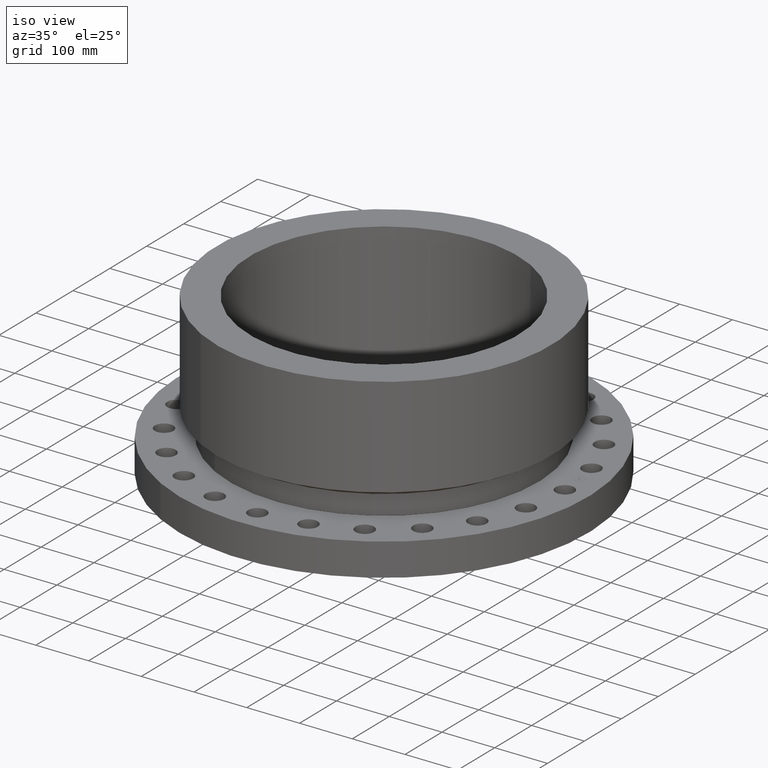
[diagram: clean part render]
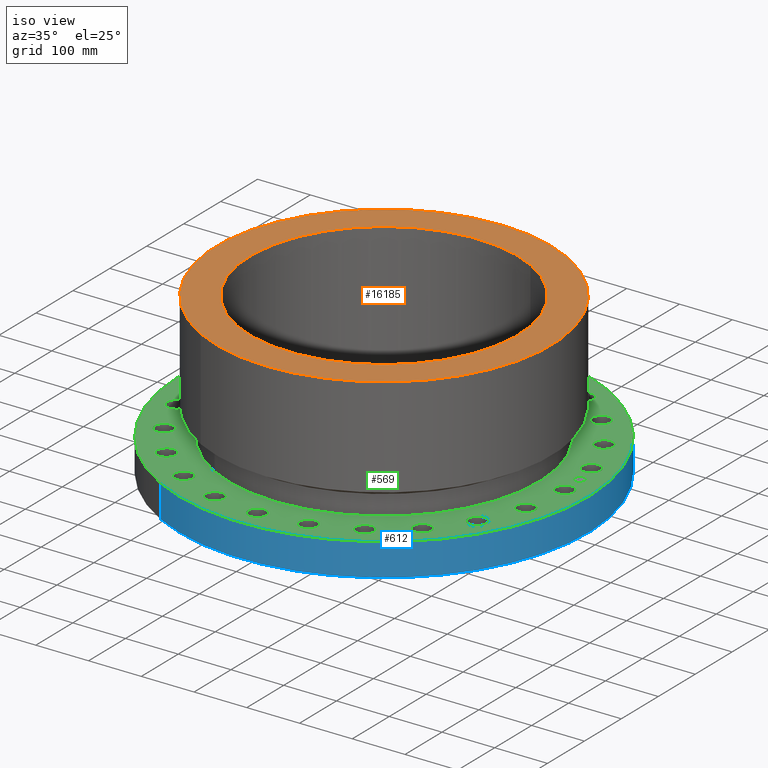
[diagram: same view with three faces highlighted in distinct colors, each labeled with its STEP entity id]
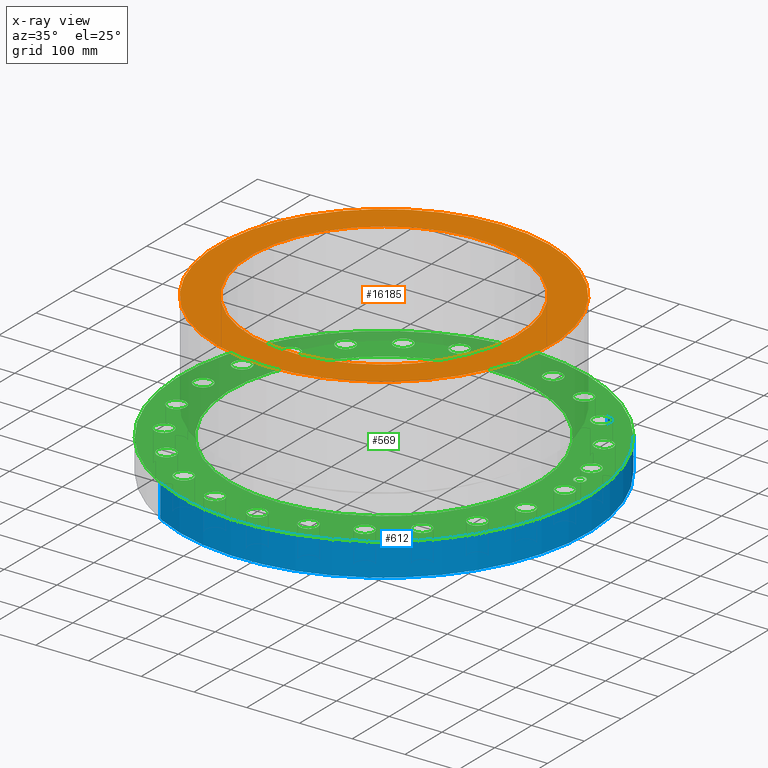
[diagram: x-ray of the same camera — body ghosted, the three highlighted faces saturated]
A machine part, iso view with three faces highlighted in distinct colors.
The next image is the same camera in x-ray (body ghosted, the three faces saturated) — at least one of them is partly hidden behind the body in this view.
Their STEP definitions:

[orange] entity #16185 — the highlighted planar face has unit normal (0, 0, -1).
#5381=AXIS2_PLACEMENT_3D('Circle Axis2P3D',#5379,#5380,$) ;
#5400=AXIS2_PLACEMENT_3D('Circle Axis2P3D',#5398,#5399,$) ;
#16161=AXIS2_PLACEMENT_3D('Plane Axis2P3D',#16158,#16159,#16160) ;
#16169=AXIS2_PLACEMENT_3D('Circle Axis2P3D',#16167,#16168,$) ;
#16178=AXIS2_PLACEMENT_3D('Circle Axis2P3D',#16176,#16177,$) ;
#5376=CARTESIAN_POINT('Vertex',(5.99281923258,10.9697820237,11.9375)) ;
#5379=CARTESIAN_POINT('Axis2P3D Location',(0.,0.,11.9375)) ;
#5383=CARTESIAN_POINT('Vertex',(-5.99281923258,-10.9697820237,11.9375)) ;
#5398=CARTESIAN_POINT('Axis2P3D Location',(0.,0.,11.9375)) ;
#16158=CARTESIAN_POINT('Axis2P3D Location',(0.,12.5,11.9375)) ;
#16167=CARTESIAN_POINT('Axis2P3D Location',(0.,0.,11.9375)) ;
#16171=CARTESIAN_POINT('Vertex',(-4.79425538606,-8.77582561894,11.9375)) ;
#16173=CARTESIAN_POINT('Vertex',(4.79425538606,8.77582561894,11.9375)) ;
#16176=CARTESIAN_POINT('Axis2P3D Location',(0.,0.,11.9375)) ;
#5380=DIRECTION('Axis2P3D Direction',(0.,0.,-0.0393700787402)) ;
#5399=DIRECTION('Axis2P3D Direction',(0.,0.,-0.0393700787402)) ;
#16159=DIRECTION('Axis2P3D Direction',(0.,0.,-0.0393700787402)) ;
#16160=DIRECTION('Axis2P3D XDirection',(0.0393700787402,0.,0.)) ;
#16168=DIRECTION('Axis2P3D Direction',(0.,0.,-0.0393700787402)) ;
#16177=DIRECTION('Axis2P3D Direction',(0.,0.,-0.0393700787402)) ;
#16164=ORIENTED_EDGE('',*,*,#5385,.F.) ;
#16165=ORIENTED_EDGE('',*,*,#5402,.F.) ;
#16182=ORIENTED_EDGE('',*,*,#16175,.T.) ;
#16183=ORIENTED_EDGE('',*,*,#16180,.T.) ;
#16184=FACE_BOUND('',#16181,.T.) ;
#16185=ADVANCED_FACE('PartBody',(#16166,#16184),#16162,.F.) ;
#5382=CIRCLE('generated circle',#5381,12.5000000001) ;
#5401=CIRCLE('generated circle',#5400,12.5000000001) ;
#16170=CIRCLE('generated circle',#16169,10.) ;
#16179=CIRCLE('generated circle',#16178,10.) ;
#5385=EDGE_CURVE('',#5377,#5384,#5382,.T.) ;
#5402=EDGE_CURVE('',#5384,#5377,#5401,.T.) ;
#16175=EDGE_CURVE('',#16172,#16174,#16170,.T.) ;
#16180=EDGE_CURVE('',#16174,#16172,#16179,.T.) ;
#16163=EDGE_LOOP('',(#16164,#16165)) ;
#16181=EDGE_LOOP('',(#16182,#16183)) ;
#16166=FACE_OUTER_BOUND('',#16163,.T.) ;
#16162=PLANE('',#16161) ;
#5377=VERTEX_POINT('',#5376) ;
#5384=VERTEX_POINT('',#5383) ;
#16172=VERTEX_POINT('',#16171) ;
#16174=VERTEX_POINT('',#16173) ;

[blue] entity #612 — the highlighted cylindrical surface (partial cylindrical patch) has radius 387.35 mm, axis along (0, 0, -1).
#99=AXIS2_PLACEMENT_3D('Circle Axis2P3D',#97,#98,$) ;
#573=AXIS2_PLACEMENT_3D('Cylinder Axis2P3D',#570,#571,#572) ;
#603=AXIS2_PLACEMENT_3D('Circle Axis2P3D',#601,#602,$) ;
#97=CARTESIAN_POINT('Axis2P3D Location',(0.,0.,2.43750000001)) ;
#101=CARTESIAN_POINT('Vertex',(7.31123946374,13.3831340689,2.43750000001)) ;
#103=CARTESIAN_POINT('Vertex',(-7.31123946374,-13.3831340689,2.43750000001)) ;
#570=CARTESIAN_POINT('Axis2P3D Location',(0.,0.,5.93750000002)) ;
#579=CARTESIAN_POINT('Vertex',(-7.31123946374,-13.3831340689,2.23792987641E-015)) ;
#581=CARTESIAN_POINT('Vertex',(7.31123946374,13.3831340689,2.23792987641E-015)) ;
#584=CARTESIAN_POINT('Line Origine',(-7.31123946374,-13.3831340689,1.21875)) ;
#589=CARTESIAN_POINT('Line Origine',(7.31123946374,13.3831340689,1.21875)) ;
#601=CARTESIAN_POINT('Axis2P3D Location',(0.,0.,2.23792987641E-015)) ;
#98=DIRECTION('Axis2P3D Direction',(0.,0.,-0.0393700787402)) ;
#571=DIRECTION('Axis2P3D Direction',(0.,0.,-0.0393700787402)) ;
#572=DIRECTION('Axis2P3D XDirection',(0.0188750212049,0.0345504945626,0.)) ;
#585=DIRECTION('Vector Direction',(0.,0.,-0.0393700787402)) ;
#590=DIRECTION('Vector Direction',(0.,0.,-0.0393700787402)) ;
#602=DIRECTION('Axis2P3D Direction',(0.,0.,-0.0393700787402)) ;
#586=VECTOR('Line Direction',#585,0.0393700787402) ;
#591=VECTOR('Line Direction',#590,0.0393700787402) ;
#607=ORIENTED_EDGE('',*,*,#605,.F.) ;
#608=ORIENTED_EDGE('',*,*,#593,.T.) ;
#609=ORIENTED_EDGE('',*,*,#105,.T.) ;
#610=ORIENTED_EDGE('',*,*,#588,.F.) ;
#612=ADVANCED_FACE('PartBody',(#611),#574,.T.) ;
#100=CIRCLE('generated circle',#99,15.2500000001) ;
#604=CIRCLE('generated circle',#603,15.2500000001) ;
#574=CYLINDRICAL_SURFACE('generated cylinder',#573,15.2500000001) ;
#105=EDGE_CURVE('',#102,#104,#100,.T.) ;
#588=EDGE_CURVE('',#580,#104,#587,.F.) ;
#593=EDGE_CURVE('',#582,#102,#592,.F.) ;
#605=EDGE_CURVE('',#582,#580,#604,.T.) ;
#606=EDGE_LOOP('',(#607,#608,#609,#610)) ;
#611=FACE_OUTER_BOUND('',#606,.T.) ;
#587=LINE('Line',#584,#586) ;
#592=LINE('Line',#589,#591) ;
#102=VERTEX_POINT('',#101) ;
#104=VERTEX_POINT('',#103) ;
#580=VERTEX_POINT('',#579) ;
#582=VERTEX_POINT('',#581) ;

[green] entity #569 — the highlighted planar face has unit normal (0, 0, -1).
#51=AXIS2_PLACEMENT_3D('Circle Axis2P3D',#49,#50,$) ;
#77=AXIS2_PLACEMENT_3D('Circle Axis2P3D',#75,#76,$) ;
#95=AXIS2_PLACEMENT_3D('Plane Axis2P3D',#92,#93,#94) ;
#99=AXIS2_PLACEMENT_3D('Circle Axis2P3D',#97,#98,$) ;
#108=AXIS2_PLACEMENT_3D('Circle Axis2P3D',#106,#107,$) ;
#121=AXIS2_PLACEMENT_3D('Circle Axis2P3D',#119,#120,$) ;
#130=AXIS2_PLACEMENT_3D('Circle Axis2P3D',#128,#129,$) ;
#139=AXIS2_PLACEMENT_3D('Circle Axis2P3D',#137,#138,$) ;
#148=AXIS2_PLACEMENT_3D('Circle Axis2P3D',#146,#147,$) ;
#157=AXIS2_PLACEMENT_3D('Circle Axis2P3D',#155,#156,$) ;
#166=AXIS2_PLACEMENT_3D('Circle Axis2P3D',#164,#165,$) ;
#175=AXIS2_PLACEMENT_3D('Circle Axis2P3D',#173,#174,$) ;
#184=AXIS2_PLACEMENT_3D('Circle Axis2P3D',#182,#183,$) ;
#193=AXIS2_PLACEMENT_3D('Circle Axis2P3D',#191,#192,$) ;
#202=AXIS2_PLACEMENT_3D('Circle Axis2P3D',#200,#201,$) ;
#211=AXIS2_PLACEMENT_3D('Circle Axis2P3D',#209,#210,$) ;
#220=AXIS2_PLACEMENT_3D('Circle Axis2P3D',#218,#219,$) ;
#229=AXIS2_PLACEMENT_3D('Circle Axis2P3D',#227,#228,$) ;
#238=AXIS2_PLACEMENT_3D('Circle Axis2P3D',#236,#237,$) ;
#247=AXIS2_PLACEMENT_3D('Circle Axis2P3D',#245,#246,$) ;
#256=AXIS2_PLACEMENT_3D('Circle Axis2P3D',#254,#255,$) ;
#265=AXIS2_PLACEMENT_3D('Circle Axis2P3D',#263,#264,$) ;
#274=AXIS2_PLACEMENT_3D('Circle Axis2P3D',#272,#273,$) ;
#283=AXIS2_PLACEMENT_3D('Circle Axis2P3D',#281,#282,$) ;
#292=AXIS2_PLACEMENT_3D('Circle Axis2P3D',#290,#291,$) ;
#301=AXIS2_PLACEMENT_3D('Circle Axis2P3D',#299,#300,$) ;
#310=AXIS2_PLACEMENT_3D('Circle Axis2P3D',#308,#309,$) ;
#319=AXIS2_PLACEMENT_3D('Circle Axis2P3D',#317,#318,$) ;
#328=AXIS2_PLACEMENT_3D('Circle Axis2P3D',#326,#327,$) ;
#337=AXIS2_PLACEMENT_3D('Circle Axis2P3D',#335,#336,$) ;
#346=AXIS2_PLACEMENT_3D('Circle Axis2P3D',#344,#345,$) ;
#355=AXIS2_PLACEMENT_3D('Circle Axis2P3D',#353,#354,$) ;
#364=AXIS2_PLACEMENT_3D('Circle Axis2P3D',#362,#363,$) ;
#373=AXIS2_PLACEMENT_3D('Circle Axis2P3D',#371,#372,$) ;
#382=AXIS2_PLACEMENT_3D('Circle Axis2P3D',#380,#381,$) ;
#391=AXIS2_PLACEMENT_3D('Circle Axis2P3D',#389,#390,$) ;
#400=AXIS2_PLACEMENT_3D('Circle Axis2P3D',#398,#399,$) ;
#409=AXIS2_PLACEMENT_3D('Circle Axis2P3D',#407,#408,$) ;
#418=AXIS2_PLACEMENT_3D('Circle Axis2P3D',#416,#417,$) ;
#427=AXIS2_PLACEMENT_3D('Circle Axis2P3D',#425,#426,$) ;
#436=AXIS2_PLACEMENT_3D('Circle Axis2P3D',#434,#435,$) ;
#445=AXIS2_PLACEMENT_3D('Circle Axis2P3D',#443,#444,$) ;
#454=AXIS2_PLACEMENT_3D('Circle Axis2P3D',#452,#453,$) ;
#463=AXIS2_PLACEMENT_3D('Circle Axis2P3D',#461,#462,$) ;
#472=AXIS2_PLACEMENT_3D('Circle Axis2P3D',#470,#471,$) ;
#481=AXIS2_PLACEMENT_3D('Circle Axis2P3D',#479,#480,$) ;
#490=AXIS2_PLACEMENT_3D('Circle Axis2P3D',#488,#489,$) ;
#499=AXIS2_PLACEMENT_3D('Circle Axis2P3D',#497,#498,$) ;
#508=AXIS2_PLACEMENT_3D('Circle Axis2P3D',#506,#507,$) ;
#517=AXIS2_PLACEMENT_3D('Circle Axis2P3D',#515,#516,$) ;
#526=AXIS2_PLACEMENT_3D('Circle Axis2P3D',#524,#525,$) ;
#535=AXIS2_PLACEMENT_3D('Circle Axis2P3D',#533,#534,$) ;
#544=AXIS2_PLACEMENT_3D('Circle Axis2P3D',#542,#543,$) ;
#553=AXIS2_PLACEMENT_3D('Circle Axis2P3D',#551,#552,$) ;
#562=AXIS2_PLACEMENT_3D('Circle Axis2P3D',#560,#561,$) ;
#44=CARTESIAN_POINT('Vertex',(12.8944680323,-0.330803621638,2.43750000001)) ;
#49=CARTESIAN_POINT('Axis2P3D Location',(13.5000000001,0.,2.43750000001)) ;
#53=CARTESIAN_POINT('Vertex',(14.1055319678,0.330803621638,2.43750000001)) ;
#75=CARTESIAN_POINT('Axis2P3D Location',(13.5000000001,0.,2.43750000001)) ;
#92=CARTESIAN_POINT('Axis2P3D Location',(0.,15.2500000001,2.43750000001)) ;
#97=CARTESIAN_POINT('Axis2P3D Location',(0.,0.,2.43750000001)) ;
#101=CARTESIAN_POINT('Vertex',(7.31123946374,13.3831340689,2.43750000001)) ;
#103=CARTESIAN_POINT('Vertex',(-7.31123946374,-13.3831340689,2.43750000001)) ;
#106=CARTESIAN_POINT('Axis2P3D Location',(0.,0.,2.43750000001)) ;
#119=CARTESIAN_POINT('Axis2P3D Location',(0.,0.,2.43750000001)) ;
#123=CARTESIAN_POINT('Vertex',(-5.53496784321,-10.1316906771,2.43750000001)) ;
#125=CARTESIAN_POINT('Vertex',(5.53496784321,10.1316906771,2.43750000001)) ;
#128=CARTESIAN_POINT('Axis2P3D Location',(0.,0.,2.43750000001)) ;
#137=CARTESIAN_POINT('Axis2P3D Location',(13.039998655,-3.4940571089,2.43750000001)) ;
#141=CARTESIAN_POINT('Vertex',(12.3694814112,-3.65686566481,2.43750000001)) ;
#143=CARTESIAN_POINT('Vertex',(13.7105158987,-3.33124855299,2.43750000001)) ;
#146=CARTESIAN_POINT('Axis2P3D Location',(13.039998655,-3.4940571089,2.43750000001)) ;
#155=CARTESIAN_POINT('Axis2P3D Location',(11.6913429511,-6.75000000003,2.43750000001)) ;
#159=CARTESIAN_POINT('Vertex',(11.0015350735,-6.73371835618,2.43750000001)) ;
#161=CARTESIAN_POINT('Vertex',(12.3811508288,-6.76628164388,2.43750000001)) ;
#164=CARTESIAN_POINT('Axis2P3D Location',(11.6913429511,-6.75000000003,2.43750000001)) ;
#173=CARTESIAN_POINT('Axis2P3D Location',(9.54594154606,-9.54594154606,2.43750000001)) ;
#177=CARTESIAN_POINT('Vertex',(8.88385230136,-9.35167926957,2.43750000001)) ;
#179=CARTESIAN_POINT('Vertex',(10.2080307907,-9.74020382255,2.43750000001)) ;
#182=CARTESIAN_POINT('Axis2P3D Location',(9.54594154606,-9.54594154606,2.43750000001)) ;
#191=CARTESIAN_POINT('Axis2P3D Location',(6.75000000003,-11.6913429511,2.43750000001)) ;
#195=CARTESIAN_POINT('Vertex',(6.16074967617,-11.3323386951,2.43750000001)) ;
#197=CARTESIAN_POINT('Vertex',(7.33925032388,-12.0503472072,2.43750000001)) ;
#200=CARTESIAN_POINT('Axis2P3D Location',(6.75000000003,-11.6913429511,2.43750000001)) ;
#209=CARTESIAN_POINT('Axis2P3D Location',(3.4940571089,-13.039998655,2.43750000001)) ;
#213=CARTESIAN_POINT('Vertex',(3.01780214167,-12.5407179662,2.43750000001)) ;
#215=CARTESIAN_POINT('Vertex',(3.97031207613,-13.5392793437,2.43750000001)) ;
#218=CARTESIAN_POINT('Axis2P3D Location',(3.4940571089,-13.039998655,2.43750000001)) ;
#227=CARTESIAN_POINT('Axis2P3D Location',(-1.53857679003E-015,-13.5000000001,2.43750000001)) ;
#231=CARTESIAN_POINT('Vertex',(-0.330803621638,-12.8944680323,2.43750000001)) ;
#233=CARTESIAN_POINT('Vertex',(0.330803621638,-14.1055319678,2.43750000001)) ;
#236=CARTESIAN_POINT('Axis2P3D Location',(-1.39870617276E-015,-13.5000000001,2.43750000001)) ;
#245=CARTESIAN_POINT('Axis2P3D Location',(-3.4940571089,-13.039998655,2.43750000001)) ;
#249=CARTESIAN_POINT('Vertex',(-3.65686566481,-12.3694814112,2.43750000001)) ;
#251=CARTESIAN_POINT('Vertex',(-3.33124855299,-13.7105158987,2.43750000001)) ;
#254=CARTESIAN_POINT('Axis2P3D Location',(-3.4940571089,-13.039998655,2.43750000001)) ;
#263=CARTESIAN_POINT('Axis2P3D Location',(-6.75000000003,-11.6913429511,2.43750000001)) ;
#267=CARTESIAN_POINT('Vertex',(-6.73371835618,-11.0015350735,2.43750000001)) ;
#269=CARTESIAN_POINT('Vertex',(-6.76628164388,-12.3811508288,2.43750000001)) ;
#272=CARTESIAN_POINT('Axis2P3D Location',(-6.75000000003,-11.6913429511,2.43750000001)) ;
#281=CARTESIAN_POINT('Axis2P3D Location',(-9.54594154606,-9.54594154606,2.43750000001)) ;
#285=CARTESIAN_POINT('Vertex',(-9.35167926957,-8.88385230136,2.43750000001)) ;
#287=CARTESIAN_POINT('Vertex',(-9.74020382255,-10.2080307907,2.43750000001)) ;
#290=CARTESIAN_POINT('Axis2P3D Location',(-9.54594154606,-9.54594154606,2.43750000001)) ;
#299=CARTESIAN_POINT('Axis2P3D Location',(-11.6913429511,-6.75000000003,2.43750000001)) ;
#303=CARTESIAN_POINT('Vertex',(-11.3323386951,-6.16074967617,2.43750000001)) ;
#305=CARTESIAN_POINT('Vertex',(-12.0503472072,-7.33925032388,2.43750000001)) ;
#308=CARTESIAN_POINT('Axis2P3D Location',(-11.6913429511,-6.75000000003,2.43750000001)) ;
#317=CARTESIAN_POINT('Axis2P3D Location',(-13.039998655,-3.4940571089,2.43750000001)) ;
#321=CARTESIAN_POINT('Vertex',(-12.5407179662,-3.01780214167,2.43750000001)) ;
#323=CARTESIAN_POINT('Vertex',(-13.5392793437,-3.97031207613,2.43750000001)) ;
#326=CARTESIAN_POINT('Axis2P3D Location',(-13.039998655,-3.4940571089,2.43750000001)) ;
#335=CARTESIAN_POINT('Axis2P3D Location',(-13.5000000001,-2.23792987641E-015,2.43750000001)) ;
#339=CARTESIAN_POINT('Vertex',(-12.8944680323,0.330803621638,2.43750000001)) ;
#341=CARTESIAN_POINT('Vertex',(-14.1055319678,-0.330803621638,2.43750000001)) ;
#344=CARTESIAN_POINT('Axis2P3D Location',(-13.5000000001,0.,2.43750000001)) ;
#353=CARTESIAN_POINT('Axis2P3D Location',(-13.039998655,3.4940571089,2.43750000001)) ;
#357=CARTESIAN_POINT('Vertex',(-12.3694814112,3.65686566481,2.43750000001)) ;
#359=CARTESIAN_POINT('Vertex',(-13.7105158987,3.33124855299,2.43750000001)) ;
#362=CARTESIAN_POINT('Axis2P3D Location',(-13.039998655,3.4940571089,2.43750000001)) ;
#371=CARTESIAN_POINT('Axis2P3D Location',(-11.6913429511,6.75000000003,2.43750000001)) ;
#375=CARTESIAN_POINT('Vertex',(-11.0015350735,6.73371835618,2.43750000001)) ;
#377=CARTESIAN_POINT('Vertex',(-12.3811508288,6.76628164388,2.43750000001)) ;
#380=CARTESIAN_POINT('Axis2P3D Location',(-11.6913429511,6.75000000003,2.43750000001)) ;
#389=CARTESIAN_POINT('Axis2P3D Location',(-9.54594154606,9.54594154606,2.43750000001)) ;
#393=CARTESIAN_POINT('Vertex',(-8.88385230136,9.35167926957,2.43750000001)) ;
#395=CARTESIAN_POINT('Vertex',(-10.2080307907,9.74020382255,2.43750000001)) ;
#398=CARTESIAN_POINT('Axis2P3D Location',(-9.54594154606,9.54594154606,2.43750000001)) ;
#407=CARTESIAN_POINT('Axis2P3D Location',(-6.75000000003,11.6913429511,2.43750000001)) ;
#411=CARTESIAN_POINT('Vertex',(-6.16074967617,11.3323386951,2.43750000001)) ;
#413=CARTESIAN_POINT('Vertex',(-7.33925032388,12.0503472072,2.43750000001)) ;
#416=CARTESIAN_POINT('Axis2P3D Location',(-6.75000000003,11.6913429511,2.43750000001)) ;
#425=CARTESIAN_POINT('Axis2P3D Location',(-3.4940571089,13.039998655,2.43750000001)) ;
#429=CARTESIAN_POINT('Vertex',(-3.01780214167,12.5407179662,2.43750000001)) ;
#431=CARTESIAN_POINT('Vertex',(-3.97031207613,13.5392793437,2.43750000001)) ;
#434=CARTESIAN_POINT('Axis2P3D Location',(-3.4940571089,13.039998655,2.43750000001)) ;
#443=CARTESIAN_POINT('Axis2P3D Location',(-2.16799456777E-015,13.5000000001,2.43750000001)) ;
#447=CARTESIAN_POINT('Vertex',(0.330803621638,12.8944680323,2.43750000001)) ;
#449=CARTESIAN_POINT('Vertex',(-0.330803621638,14.1055319678,2.43750000001)) ;
#452=CARTESIAN_POINT('Axis2P3D Location',(-2.51767111096E-015,13.5000000001,2.43750000001)) ;
#461=CARTESIAN_POINT('Axis2P3D Location',(3.4940571089,13.039998655,2.43750000001)) ;
#465=CARTESIAN_POINT('Vertex',(3.65686566481,12.3694814112,2.43750000001)) ;
#467=CARTESIAN_POINT('Vertex',(3.33124855299,13.7105158987,2.43750000001)) ;
#470=CARTESIAN_POINT('Axis2P3D Location',(3.4940571089,13.039998655,2.43750000001)) ;
#479=CARTESIAN_POINT('Axis2P3D Location',(6.75000000003,11.6913429511,2.43750000001)) ;
#483=CARTESIAN_POINT('Vertex',(6.73371835618,11.0015350735,2.43750000001)) ;
#485=CARTESIAN_POINT('Vertex',(6.76628164388,12.3811508288,2.43750000001)) ;
#488=CARTESIAN_POINT('Axis2P3D Location',(6.75000000003,11.6913429511,2.43750000001)) ;
#497=CARTESIAN_POINT('Axis2P3D Location',(9.54594154606,9.54594154606,2.43750000001)) ;
#501=CARTESIAN_POINT('Vertex',(9.35167926957,8.88385230136,2.43750000001)) ;
#503=CARTESIAN_POINT('Vertex',(9.74020382255,10.2080307907,2.43750000001)) ;
#506=CARTESIAN_POINT('Axis2P3D Location',(9.54594154606,9.54594154606,2.43750000001)) ;
#515=CARTESIAN_POINT('Axis2P3D Location',(11.6913429511,6.75000000003,2.43750000001)) ;
#519=CARTESIAN_POINT('Vertex',(11.3323386951,6.16074967617,2.43750000001)) ;
#521=CARTESIAN_POINT('Vertex',(12.0503472072,7.33925032388,2.43750000001)) ;
#524=CARTESIAN_POINT('Axis2P3D Location',(11.6913429511,6.75000000003,2.43750000001)) ;
#533=CARTESIAN_POINT('Axis2P3D Location',(13.039998655,3.4940571089,2.43750000001)) ;
#537=CARTESIAN_POINT('Vertex',(12.5407179662,3.01780214167,2.43750000001)) ;
#539=CARTESIAN_POINT('Vertex',(13.5392793437,3.97031207613,2.43750000001)) ;
#542=CARTESIAN_POINT('Axis2P3D Location',(13.039998655,3.4940571089,2.43750000001)) ;
#551=CARTESIAN_POINT('Axis2P3D Location',(13.3845056286,1.76210359498,2.43750000001)) ;
#555=CARTESIAN_POINT('Vertex',(13.4399792597,1.34073953311,2.43750000001)) ;
#557=CARTESIAN_POINT('Vertex',(13.3290319975,2.18346765685,2.43750000001)) ;
#560=CARTESIAN_POINT('Axis2P3D Location',(13.3845056286,1.76210359498,2.43750000001)) ;
#50=DIRECTION('Axis2P3D Direction',(0.,-0.,0.0393700787402)) ;
#76=DIRECTION('Axis2P3D Direction',(0.,-0.,0.0393700787402)) ;
#93=DIRECTION('Axis2P3D Direction',(0.,0.,-0.0393700787402)) ;
#94=DIRECTION('Axis2P3D XDirection',(0.0393700787402,0.,0.)) ;
#98=DIRECTION('Axis2P3D Direction',(0.,0.,-0.0393700787402)) ;
#107=DIRECTION('Axis2P3D Direction',(0.,0.,-0.0393700787402)) ;
#120=DIRECTION('Axis2P3D Direction',(0.,0.,-0.0393700787402)) ;
#129=DIRECTION('Axis2P3D Direction',(0.,0.,-0.0393700787402)) ;
#138=DIRECTION('Axis2P3D Direction',(0.,0.,-0.0393700787402)) ;
#147=DIRECTION('Axis2P3D Direction',(0.,0.,-0.0393700787402)) ;
#156=DIRECTION('Axis2P3D Direction',(0.,0.,-0.0393700787402)) ;
#165=DIRECTION('Axis2P3D Direction',(0.,0.,-0.0393700787402)) ;
#174=DIRECTION('Axis2P3D Direction',(0.,0.,-0.0393700787402)) ;
#183=DIRECTION('Axis2P3D Direction',(0.,0.,-0.0393700787402)) ;
#192=DIRECTION('Axis2P3D Direction',(0.,0.,-0.0393700787402)) ;
#201=DIRECTION('Axis2P3D Direction',(0.,0.,-0.0393700787402)) ;
#210=DIRECTION('Axis2P3D Direction',(0.,0.,-0.0393700787402)) ;
#219=DIRECTION('Axis2P3D Direction',(0.,0.,-0.0393700787402)) ;
#228=DIRECTION('Axis2P3D Direction',(0.,0.,-0.0393700787402)) ;
#237=DIRECTION('Axis2P3D Direction',(0.,0.,-0.0393700787402)) ;
#246=DIRECTION('Axis2P3D Direction',(0.,0.,-0.0393700787402)) ;
#255=DIRECTION('Axis2P3D Direction',(0.,0.,-0.0393700787402)) ;
#264=DIRECTION('Axis2P3D Direction',(0.,0.,-0.0393700787402)) ;
#273=DIRECTION('Axis2P3D Direction',(0.,0.,-0.0393700787402)) ;
#282=DIRECTION('Axis2P3D Direction',(0.,0.,-0.0393700787402)) ;
#291=DIRECTION('Axis2P3D Direction',(0.,0.,-0.0393700787402)) ;
#300=DIRECTION('Axis2P3D Direction',(0.,0.,-0.0393700787402)) ;
#309=DIRECTION('Axis2P3D Direction',(0.,0.,-0.0393700787402)) ;
#318=DIRECTION('Axis2P3D Direction',(0.,0.,-0.0393700787402)) ;
#327=DIRECTION('Axis2P3D Direction',(0.,0.,-0.0393700787402)) ;
#336=DIRECTION('Axis2P3D Direction',(0.,0.,-0.0393700787402)) ;
#345=DIRECTION('Axis2P3D Direction',(0.,0.,-0.0393700787402)) ;
#354=DIRECTION('Axis2P3D Direction',(0.,0.,-0.0393700787402)) ;
#363=DIRECTION('Axis2P3D Direction',(0.,0.,-0.0393700787402)) ;
#372=DIRECTION('Axis2P3D Direction',(0.,0.,-0.0393700787402)) ;
#381=DIRECTION('Axis2P3D Direction',(0.,0.,-0.0393700787402)) ;
#390=DIRECTION('Axis2P3D Direction',(0.,0.,-0.0393700787402)) ;
#399=DIRECTION('Axis2P3D Direction',(0.,0.,-0.0393700787402)) ;
#408=DIRECTION('Axis2P3D Direction',(0.,0.,-0.0393700787402)) ;
#417=DIRECTION('Axis2P3D Direction',(0.,0.,-0.0393700787402)) ;
#426=DIRECTION('Axis2P3D Direction',(0.,0.,-0.0393700787402)) ;
#435=DIRECTION('Axis2P3D Direction',(0.,0.,-0.0393700787402)) ;
#444=DIRECTION('Axis2P3D Direction',(0.,0.,-0.0393700787402)) ;
#453=DIRECTION('Axis2P3D Direction',(0.,0.,-0.0393700787402)) ;
#462=DIRECTION('Axis2P3D Direction',(0.,0.,-0.0393700787402)) ;
#471=DIRECTION('Axis2P3D Direction',(0.,0.,-0.0393700787402)) ;
#480=DIRECTION('Axis2P3D Direction',(0.,0.,-0.0393700787402)) ;
#489=DIRECTION('Axis2P3D Direction',(0.,0.,-0.0393700787402)) ;
#498=DIRECTION('Axis2P3D Direction',(0.,0.,-0.0393700787402)) ;
#507=DIRECTION('Axis2P3D Direction',(0.,0.,-0.0393700787402)) ;
#516=DIRECTION('Axis2P3D Direction',(0.,0.,-0.0393700787402)) ;
#525=DIRECTION('Axis2P3D Direction',(0.,0.,-0.0393700787402)) ;
#534=DIRECTION('Axis2P3D Direction',(0.,0.,-0.0393700787402)) ;
#543=DIRECTION('Axis2P3D Direction',(0.,0.,-0.0393700787402)) ;
#552=DIRECTION('Axis2P3D Direction',(0.,0.,-0.0393700787402)) ;
#561=DIRECTION('Axis2P3D Direction',(0.,0.,-0.0393700787402)) ;
#112=ORIENTED_EDGE('',*,*,#105,.F.) ;
#113=ORIENTED_EDGE('',*,*,#110,.F.) ;
#116=ORIENTED_EDGE('',*,*,#55,.T.) ;
#117=ORIENTED_EDGE('',*,*,#79,.T.) ;
#134=ORIENTED_EDGE('',*,*,#127,.T.) ;
#135=ORIENTED_EDGE('',*,*,#132,.T.) ;
#152=ORIENTED_EDGE('',*,*,#145,.T.) ;
#153=ORIENTED_EDGE('',*,*,#150,.T.) ;
#170=ORIENTED_EDGE('',*,*,#163,.T.) ;
#171=ORIENTED_EDGE('',*,*,#168,.T.) ;
#188=ORIENTED_EDGE('',*,*,#181,.T.) ;
#189=ORIENTED_EDGE('',*,*,#186,.T.) ;
#206=ORIENTED_EDGE('',*,*,#199,.T.) ;
#207=ORIENTED_EDGE('',*,*,#204,.T.) ;
#224=ORIENTED_EDGE('',*,*,#217,.T.) ;
#225=ORIENTED_EDGE('',*,*,#222,.T.) ;
#242=ORIENTED_EDGE('',*,*,#235,.T.) ;
#243=ORIENTED_EDGE('',*,*,#240,.T.) ;
#260=ORIENTED_EDGE('',*,*,#253,.T.) ;
#261=ORIENTED_EDGE('',*,*,#258,.T.) ;
#278=ORIENTED_EDGE('',*,*,#271,.T.) ;
#279=ORIENTED_EDGE('',*,*,#276,.T.) ;
#296=ORIENTED_EDGE('',*,*,#289,.T.) ;
#297=ORIENTED_EDGE('',*,*,#294,.T.) ;
#314=ORIENTED_EDGE('',*,*,#307,.T.) ;
#315=ORIENTED_EDGE('',*,*,#312,.T.) ;
#332=ORIENTED_EDGE('',*,*,#325,.T.) ;
#333=ORIENTED_EDGE('',*,*,#330,.T.) ;
#350=ORIENTED_EDGE('',*,*,#343,.T.) ;
#351=ORIENTED_EDGE('',*,*,#348,.T.) ;
#368=ORIENTED_EDGE('',*,*,#361,.T.) ;
#369=ORIENTED_EDGE('',*,*,#366,.T.) ;
#386=ORIENTED_EDGE('',*,*,#379,.T.) ;
#387=ORIENTED_EDGE('',*,*,#384,.T.) ;
#404=ORIENTED_EDGE('',*,*,#397,.T.) ;
#405=ORIENTED_EDGE('',*,*,#402,.T.) ;
#422=ORIENTED_EDGE('',*,*,#415,.T.) ;
#423=ORIENTED_EDGE('',*,*,#420,.T.) ;
#440=ORIENTED_EDGE('',*,*,#433,.T.) ;
#441=ORIENTED_EDGE('',*,*,#438,.T.) ;
#458=ORIENTED_EDGE('',*,*,#451,.T.) ;
#459=ORIENTED_EDGE('',*,*,#456,.T.) ;
#476=ORIENTED_EDGE('',*,*,#469,.T.) ;
#477=ORIENTED_EDGE('',*,*,#474,.T.) ;
#494=ORIENTED_EDGE('',*,*,#487,.T.) ;
#495=ORIENTED_EDGE('',*,*,#492,.T.) ;
#512=ORIENTED_EDGE('',*,*,#505,.T.) ;
#513=ORIENTED_EDGE('',*,*,#510,.T.) ;
#530=ORIENTED_EDGE('',*,*,#523,.T.) ;
#531=ORIENTED_EDGE('',*,*,#528,.T.) ;
#548=ORIENTED_EDGE('',*,*,#541,.T.) ;
#549=ORIENTED_EDGE('',*,*,#546,.T.) ;
#566=ORIENTED_EDGE('',*,*,#559,.F.) ;
#567=ORIENTED_EDGE('',*,*,#564,.F.) ;
#118=FACE_BOUND('',#115,.T.) ;
#136=FACE_BOUND('',#133,.T.) ;
#154=FACE_BOUND('',#151,.T.) ;
#172=FACE_BOUND('',#169,.T.) ;
#190=FACE_BOUND('',#187,.T.) ;
#208=FACE_BOUND('',#205,.T.) ;
#226=FACE_BOUND('',#223,.T.) ;
#244=FACE_BOUND('',#241,.T.) ;
#262=FACE_BOUND('',#259,.T.) ;
#280=FACE_BOUND('',#277,.T.) ;
#298=FACE_BOUND('',#295,.T.) ;
#316=FACE_BOUND('',#313,.T.) ;
#334=FACE_BOUND('',#331,.T.) ;
#352=FACE_BOUND('',#349,.T.) ;
#370=FACE_BOUND('',#367,.T.) ;
#388=FACE_BOUND('',#385,.T.) ;
#406=FACE_BOUND('',#403,.T.) ;
#424=FACE_BOUND('',#421,.T.) ;
#442=FACE_BOUND('',#439,.T.) ;
#460=FACE_BOUND('',#457,.T.) ;
#478=FACE_BOUND('',#475,.T.) ;
#496=FACE_BOUND('',#493,.T.) ;
#514=FACE_BOUND('',#511,.T.) ;
#532=FACE_BOUND('',#529,.T.) ;
#550=FACE_BOUND('',#547,.T.) ;
#568=FACE_BOUND('',#565,.T.) ;
#569=ADVANCED_FACE('PartBody',(#114,#118,#136,#154,#172,#190,#208,#226,#244,#262,#280,#298,#316,#334,#352,#370,#388,#406,#424,#442,#460,#478,#496,#514,#532,#550,#568),#96,.F.) ;
#52=CIRCLE('generated circle',#51,0.690000000003) ;
#78=CIRCLE('generated circle',#77,0.690000000003) ;
#100=CIRCLE('generated circle',#99,15.2500000001) ;
#109=CIRCLE('generated circle',#108,15.2500000001) ;
#122=CIRCLE('generated circle',#121,11.545) ;
#131=CIRCLE('generated circle',#130,11.545) ;
#140=CIRCLE('generated circle',#139,0.690000000003) ;
#149=CIRCLE('generated circle',#148,0.690000000003) ;
#158=CIRCLE('generated circle',#157,0.690000000003) ;
#167=CIRCLE('generated circle',#166,0.690000000003) ;
#176=CIRCLE('generated circle',#175,0.690000000003) ;
#185=CIRCLE('generated circle',#184,0.690000000003) ;
#194=CIRCLE('generated circle',#193,0.690000000003) ;
#203=CIRCLE('generated circle',#202,0.690000000003) ;
#212=CIRCLE('generated circle',#211,0.690000000003) ;
#221=CIRCLE('generated circle',#220,0.690000000003) ;
#230=CIRCLE('generated circle',#229,0.690000000003) ;
#239=CIRCLE('generated circle',#238,0.690000000003) ;
#248=CIRCLE('generated circle',#247,0.690000000003) ;
#257=CIRCLE('generated circle',#256,0.690000000003) ;
#266=CIRCLE('generated circle',#265,0.690000000003) ;
#275=CIRCLE('generated circle',#274,0.690000000003) ;
#284=CIRCLE('generated circle',#283,0.690000000003) ;
#293=CIRCLE('generated circle',#292,0.690000000003) ;
#302=CIRCLE('generated circle',#301,0.690000000003) ;
#311=CIRCLE('generated circle',#310,0.690000000003) ;
#320=CIRCLE('generated circle',#319,0.690000000003) ;
#329=CIRCLE('generated circle',#328,0.690000000003) ;
#338=CIRCLE('generated circle',#337,0.690000000003) ;
#347=CIRCLE('generated circle',#346,0.690000000003) ;
#356=CIRCLE('generated circle',#355,0.690000000003) ;
#365=CIRCLE('generated circle',#364,0.690000000003) ;
#374=CIRCLE('generated circle',#373,0.690000000003) ;
#383=CIRCLE('generated circle',#382,0.690000000003) ;
#392=CIRCLE('generated circle',#391,0.690000000003) ;
#401=CIRCLE('generated circle',#400,0.690000000003) ;
#410=CIRCLE('generated circle',#409,0.690000000003) ;
#419=CIRCLE('generated circle',#418,0.690000000003) ;
#428=CIRCLE('generated circle',#427,0.690000000003) ;
#437=CIRCLE('generated circle',#436,0.690000000003) ;
#446=CIRCLE('generated circle',#445,0.690000000003) ;
#455=CIRCLE('generated circle',#454,0.690000000003) ;
#464=CIRCLE('generated circle',#463,0.690000000003) ;
#473=CIRCLE('generated circle',#472,0.690000000003) ;
#482=CIRCLE('generated circle',#481,0.690000000003) ;
#491=CIRCLE('generated circle',#490,0.690000000003) ;
#500=CIRCLE('generated circle',#499,0.690000000003) ;
#509=CIRCLE('generated circle',#508,0.690000000003) ;
#518=CIRCLE('generated circle',#517,0.690000000003) ;
#527=CIRCLE('generated circle',#526,0.690000000003) ;
#536=CIRCLE('generated circle',#535,0.690000000003) ;
#545=CIRCLE('generated circle',#544,0.690000000003) ;
#554=CIRCLE('generated circle',#553,0.424999995752) ;
#563=CIRCLE('generated circle',#562,0.424999995752) ;
#55=EDGE_CURVE('',#54,#45,#52,.F.) ;
#79=EDGE_CURVE('',#45,#54,#78,.F.) ;
#105=EDGE_CURVE('',#102,#104,#100,.T.) ;
#110=EDGE_CURVE('',#104,#102,#109,.T.) ;
#127=EDGE_CURVE('',#124,#126,#122,.T.) ;
#132=EDGE_CURVE('',#126,#124,#131,.T.) ;
#145=EDGE_CURVE('',#142,#144,#140,.T.) ;
#150=EDGE_CURVE('',#144,#142,#149,.T.) ;
#163=EDGE_CURVE('',#160,#162,#158,.T.) ;
#168=EDGE_CURVE('',#162,#160,#167,.T.) ;
#181=EDGE_CURVE('',#178,#180,#176,.T.) ;
#186=EDGE_CURVE('',#180,#178,#185,.T.) ;
#199=EDGE_CURVE('',#196,#198,#194,.T.) ;
#204=EDGE_CURVE('',#198,#196,#203,.T.) ;
#217=EDGE_CURVE('',#214,#216,#212,.T.) ;
#222=EDGE_CURVE('',#216,#214,#221,.T.) ;
#235=EDGE_CURVE('',#232,#234,#230,.T.) ;
#240=EDGE_CURVE('',#234,#232,#239,.T.) ;
#253=EDGE_CURVE('',#250,#252,#248,.T.) ;
#258=EDGE_CURVE('',#252,#250,#257,.T.) ;
#271=EDGE_CURVE('',#268,#270,#266,.T.) ;
#276=EDGE_CURVE('',#270,#268,#275,.T.) ;
#289=EDGE_CURVE('',#286,#288,#284,.T.) ;
#294=EDGE_CURVE('',#288,#286,#293,.T.) ;
#307=EDGE_CURVE('',#304,#306,#302,.T.) ;
#312=EDGE_CURVE('',#306,#304,#311,.T.) ;
#325=EDGE_CURVE('',#322,#324,#320,.T.) ;
#330=EDGE_CURVE('',#324,#322,#329,.T.) ;
#343=EDGE_CURVE('',#340,#342,#338,.T.) ;
#348=EDGE_CURVE('',#342,#340,#347,.T.) ;
#361=EDGE_CURVE('',#358,#360,#356,.T.) ;
#366=EDGE_CURVE('',#360,#358,#365,.T.) ;
#379=EDGE_CURVE('',#376,#378,#374,.T.) ;
#384=EDGE_CURVE('',#378,#376,#383,.T.) ;
#397=EDGE_CURVE('',#394,#396,#392,.T.) ;
#402=EDGE_CURVE('',#396,#394,#401,.T.) ;
#415=EDGE_CURVE('',#412,#414,#410,.T.) ;
#420=EDGE_CURVE('',#414,#412,#419,.T.) ;
#433=EDGE_CURVE('',#430,#432,#428,.T.) ;
#438=EDGE_CURVE('',#432,#430,#437,.T.) ;
#451=EDGE_CURVE('',#448,#450,#446,.T.) ;
#456=EDGE_CURVE('',#450,#448,#455,.T.) ;
#469=EDGE_CURVE('',#466,#468,#464,.T.) ;
#474=EDGE_CURVE('',#468,#466,#473,.T.) ;
#487=EDGE_CURVE('',#484,#486,#482,.T.) ;
#492=EDGE_CURVE('',#486,#484,#491,.T.) ;
#505=EDGE_CURVE('',#502,#504,#500,.T.) ;
#510=EDGE_CURVE('',#504,#502,#509,.T.) ;
#523=EDGE_CURVE('',#520,#522,#518,.T.) ;
#528=EDGE_CURVE('',#522,#520,#527,.T.) ;
#541=EDGE_CURVE('',#538,#540,#536,.T.) ;
#546=EDGE_CURVE('',#540,#538,#545,.T.) ;
#559=EDGE_CURVE('',#556,#558,#554,.F.) ;
#564=EDGE_CURVE('',#558,#556,#563,.F.) ;
#111=EDGE_LOOP('',(#112,#113)) ;
#115=EDGE_LOOP('',(#116,#117)) ;
#133=EDGE_LOOP('',(#134,#135)) ;
#151=EDGE_LOOP('',(#152,#153)) ;
#169=EDGE_LOOP('',(#170,#171)) ;
#187=EDGE_LOOP('',(#188,#189)) ;
#205=EDGE_LOOP('',(#206,#207)) ;
#223=EDGE_LOOP('',(#224,#225)) ;
#241=EDGE_LOOP('',(#242,#243)) ;
#259=EDGE_LOOP('',(#260,#261)) ;
#277=EDGE_LOOP('',(#278,#279)) ;
#295=EDGE_LOOP('',(#296,#297)) ;
#313=EDGE_LOOP('',(#314,#315)) ;
#331=EDGE_LOOP('',(#332,#333)) ;
#349=EDGE_LOOP('',(#350,#351)) ;
#367=EDGE_LOOP('',(#368,#369)) ;
#385=EDGE_LOOP('',(#386,#387)) ;
#403=EDGE_LOOP('',(#404,#405)) ;
#421=EDGE_LOOP('',(#422,#423)) ;
#439=EDGE_LOOP('',(#440,#441)) ;
#457=EDGE_LOOP('',(#458,#459)) ;
#475=EDGE_LOOP('',(#476,#477)) ;
#493=EDGE_LOOP('',(#494,#495)) ;
#511=EDGE_LOOP('',(#512,#513)) ;
#529=EDGE_LOOP('',(#530,#531)) ;
#547=EDGE_LOOP('',(#548,#549)) ;
#565=EDGE_LOOP('',(#566,#567)) ;
#114=FACE_OUTER_BOUND('',#111,.T.) ;
#96=PLANE('',#95) ;
#45=VERTEX_POINT('',#44) ;
#54=VERTEX_POINT('',#53) ;
#102=VERTEX_POINT('',#101) ;
#104=VERTEX_POINT('',#103) ;
#124=VERTEX_POINT('',#123) ;
#126=VERTEX_POINT('',#125) ;
#142=VERTEX_POINT('',#141) ;
#144=VERTEX_POINT('',#143) ;
#160=VERTEX_POINT('',#159) ;
#162=VERTEX_POINT('',#161) ;
#178=VERTEX_POINT('',#177) ;
#180=VERTEX_POINT('',#179) ;
#196=VERTEX_POINT('',#195) ;
#198=VERTEX_POINT('',#197) ;
#214=VERTEX_POINT('',#213) ;
#216=VERTEX_POINT('',#215) ;
#232=VERTEX_POINT('',#231) ;
#234=VERTEX_POINT('',#233) ;
#250=VERTEX_POINT('',#249) ;
#252=VERTEX_POINT('',#251) ;
#268=VERTEX_POINT('',#267) ;
#270=VERTEX_POINT('',#269) ;
#286=VERTEX_POINT('',#285) ;
#288=VERTEX_POINT('',#287) ;
#304=VERTEX_POINT('',#303) ;
#306=VERTEX_POINT('',#305) ;
#322=VERTEX_POINT('',#321) ;
#324=VERTEX_POINT('',#323) ;
#340=VERTEX_POINT('',#339) ;
#342=VERTEX_POINT('',#341) ;
#358=VERTEX_POINT('',#357) ;
#360=VERTEX_POINT('',#359) ;
#376=VERTEX_POINT('',#375) ;
#378=VERTEX_POINT('',#377) ;
#394=VERTEX_POINT('',#393) ;
#396=VERTEX_POINT('',#395) ;
#412=VERTEX_POINT('',#411) ;
#414=VERTEX_POINT('',#413) ;
#430=VERTEX_POINT('',#429) ;
#432=VERTEX_POINT('',#431) ;
#448=VERTEX_POINT('',#447) ;
#450=VERTEX_POINT('',#449) ;
#466=VERTEX_POINT('',#465) ;
#468=VERTEX_POINT('',#467) ;
#484=VERTEX_POINT('',#483) ;
#486=VERTEX_POINT('',#485) ;
#502=VERTEX_POINT('',#501) ;
#504=VERTEX_POINT('',#503) ;
#520=VERTEX_POINT('',#519) ;
#522=VERTEX_POINT('',#521) ;
#538=VERTEX_POINT('',#537) ;
#540=VERTEX_POINT('',#539) ;
#556=VERTEX_POINT('',#555) ;
#558=VERTEX_POINT('',#557) ;